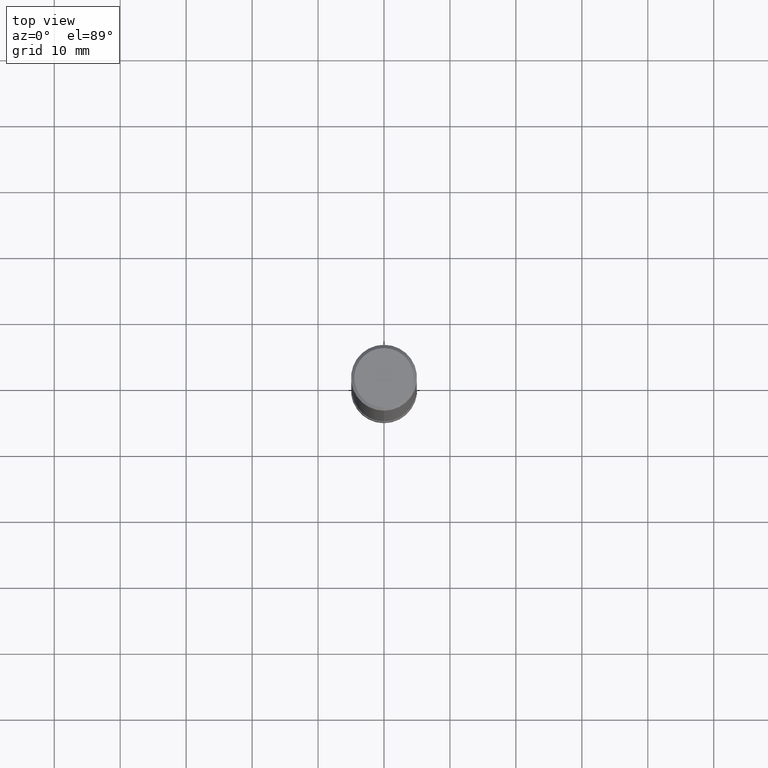
[diagram: clean part render]
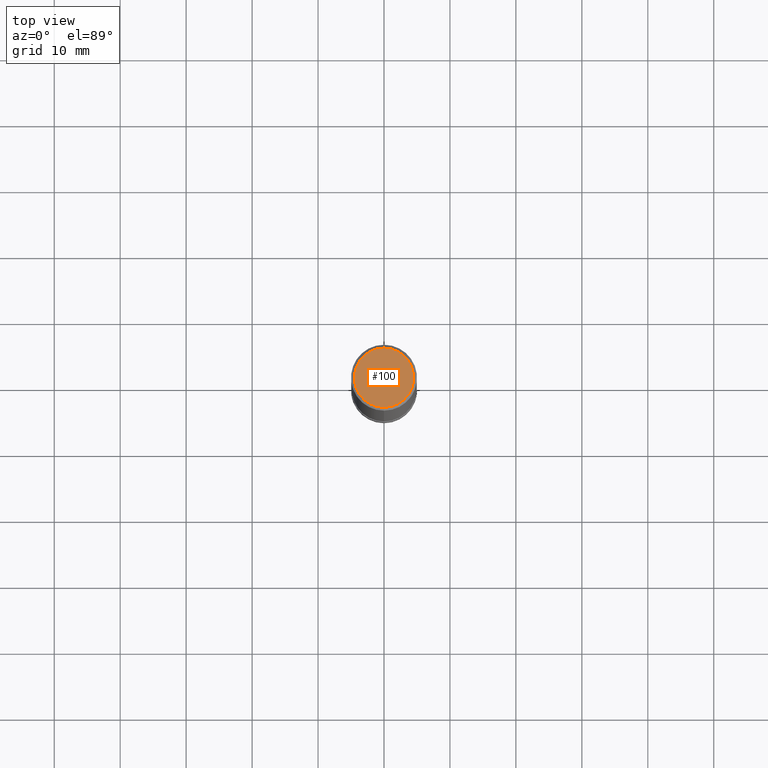
[diagram: same view with one face highlighted and labeled with its STEP entity id]
A machine part, top view. The second image highlights one B-rep face of the part: STEP entity #100.
In plain terms, the highlighted planar face has unit normal (-0, 0, 1).
Its self-contained STEP definition (entity closure, byte-faithful):
#100=ADVANCED_FACE('',(#240),#241,.T.);
#102=EDGE_CURVE('',#162,#182,#243,.T.);
#156=EDGE_CURVE('',#182,#162,#304,.T.);
#162=VERTEX_POINT('',#311);
#182=VERTEX_POINT('',#334);
#240=FACE_OUTER_BOUND('',#388,.T.);
#241=PLANE('',#389);
#243=CIRCLE('',#392,4.5);
#304=CIRCLE('',#468,4.5);
#311=CARTESIAN_POINT('',(5.5107285922007E-016,-4.5,0.0));
#334=CARTESIAN_POINT('',(0.0,4.5,0.0));
#388=EDGE_LOOP('',(#561,#562));
#389=AXIS2_PLACEMENT_3D('',#563,#564,#565);
#392=AXIS2_PLACEMENT_3D('',#566,#567,#568);
#468=AXIS2_PLACEMENT_3D('',#645,#646,#647);
#561=ORIENTED_EDGE('',*,*,#156,.F.);
#562=ORIENTED_EDGE('',*,*,#102,.F.);
#563=CARTESIAN_POINT('',(0.0,2.25,0.0));
#564=DIRECTION('',(-0.0,0.0,1.0));
#565=DIRECTION('',(0.0,-1.0,0.0));
#566=CARTESIAN_POINT('',(0.0,0.0,0.0));
#567=DIRECTION('',(0.0,0.0,-1.0));
#568=DIRECTION('',(0.0,1.0,0.0));
#645=CARTESIAN_POINT('',(0.0,0.0,0.0));
#646=DIRECTION('',(0.0,0.0,-1.0));
#647=DIRECTION('',(0.0,1.0,0.0));